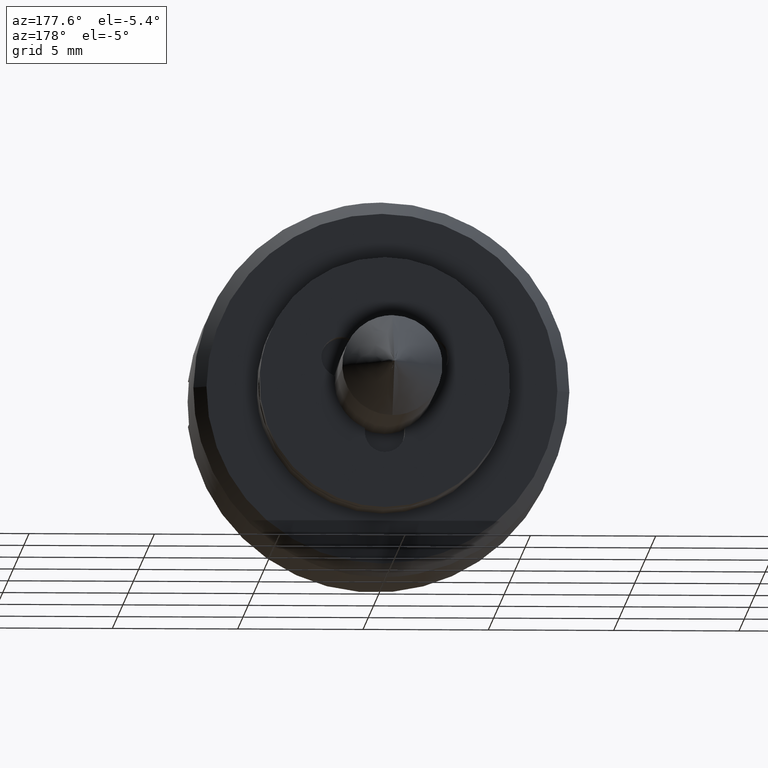
[diagram: clean part render]
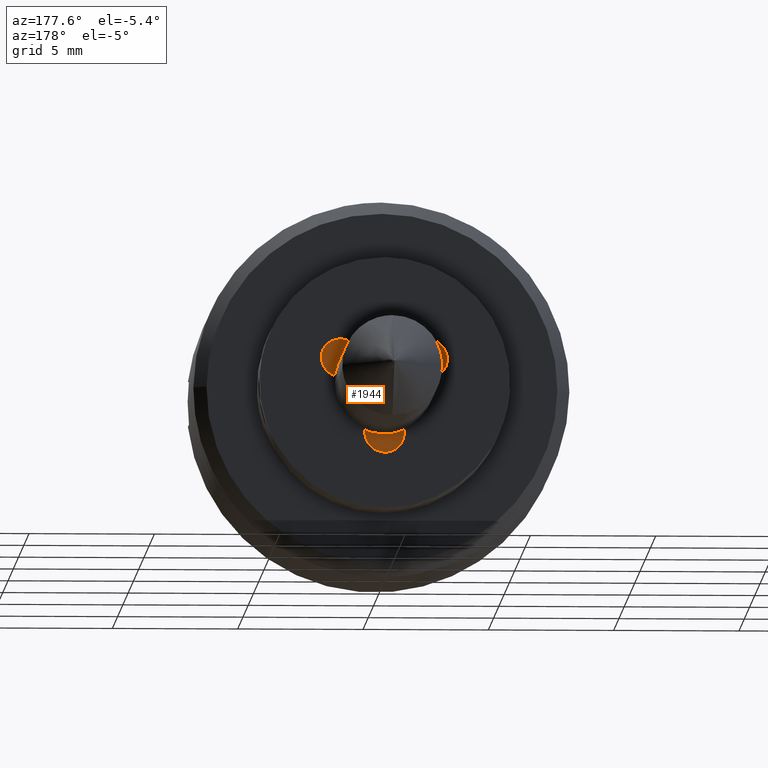
[diagram: same view with one face highlighted and labeled with its STEP entity id]
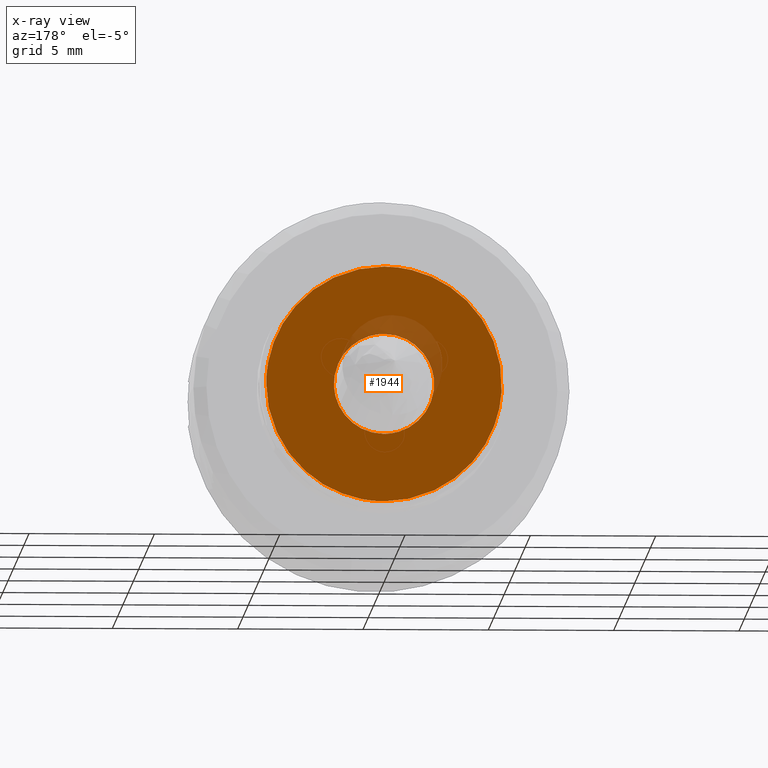
[diagram: x-ray of the same camera — body ghosted, the highlighted face saturated]
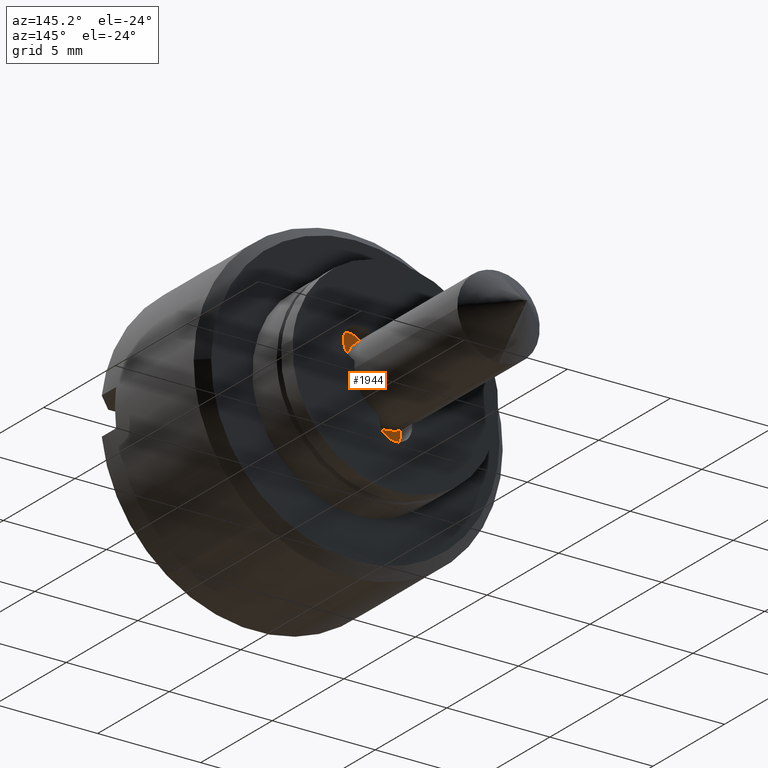
[diagram: same view with one face highlighted and labeled with its STEP entity id]
A machine part, auxiliary view. The second image highlights one B-rep face of the part: STEP entity #1944.
The next image is the same camera in x-ray: the body ghosted, the highlighted face saturated — about 6% of this face is hidden behind the body in this view.
A second angle (auxiliary view) of the same face is appended — the face is thin or edge-on in the first view.
In plain terms, the highlighted face is a freeform B-spline surface patch.
Its self-contained STEP definition (entity closure, byte-faithful):
#889=CARTESIAN_POINT('',(1.804112E-016,-1.996269596842710,-0.122097079086450));
#890=VERTEX_POINT('',#889);
#896=CARTESIAN_POINT('',(0.0,0.0,-2.0));
#897=VERTEX_POINT('',#896);
#898=CARTESIAN_POINT('',(0.0,0.0,-2.0));
#899=CARTESIAN_POINT('',(0.0,-1.881412133779795,-1.999999999999999));
#900=CARTESIAN_POINT('',(1.804112E-016,-1.996269596842710,-0.122097079086450));
#908=(BOUNDED_CURVE()B_SPLINE_CURVE(2,(#898,#899,#900),.UNSPECIFIED.,.F.,.U.)B_SPLINE_CURVE_WITH_KNOTS((3,3),(0.500000000000000,0.739332962239076),.UNSPECIFIED.)CURVE()GEOMETRIC_REPRESENTATION_ITEM()RATIONAL_B_SPLINE_CURVE((1.0,0.719603993286554,0.976072041667003))REPRESENTATION_ITEM(''));
#909=EDGE_CURVE('',#897,#890,#908,.T.);
#911=CARTESIAN_POINT('',(6.530685E-016,1.986019440260714,0.236065208990524));
#912=VERTEX_POINT('',#911);
#913=CARTESIAN_POINT('',(6.530685E-016,1.986019440260714,0.236065208990523));
#914=CARTESIAN_POINT('',(0.0,2.0,0.118446591908866));
#915=CARTESIAN_POINT('',(0.0,2.0,0.0));
#916=CARTESIAN_POINT('',(0.0,2.000000000000000,-2.000000000000000));
#917=CARTESIAN_POINT('',(0.0,0.0,-2.0));
#925=(BOUNDED_CURVE()B_SPLINE_CURVE(2,(#913,#914,#915,#916,#917),.UNSPECIFIED.,.F.,.U.)B_SPLINE_CURVE_WITH_KNOTS((3,2,3),(0.229562750957712,0.250000000000000,0.500000000000000),.UNSPECIFIED.)CURVE()GEOMETRIC_REPRESENTATION_ITEM()RATIONAL_B_SPLINE_CURVE((0.956027297986413,0.976056273377248,1.0,0.707106781186548,1.0))REPRESENTATION_ITEM(''));
#926=EDGE_CURVE('',#912,#897,#925,.T.);
#974=CARTESIAN_POINT('',(0.0,0.0,2.0));
#975=VERTEX_POINT('',#974);
#976=CARTESIAN_POINT('',(0.0,0.0,2.0));
#977=CARTESIAN_POINT('',(0.0,1.776351988553769,2.000000000000000));
#978=CARTESIAN_POINT('',(6.530685E-016,1.986019440260714,0.236065208990523));
#986=(BOUNDED_CURVE()B_SPLINE_CURVE(2,(#976,#977,#978),.UNSPECIFIED.,.F.,.U.)B_SPLINE_CURVE_WITH_KNOTS((3,3),(0.0,0.229562750957712),.UNSPECIFIED.)CURVE()GEOMETRIC_REPRESENTATION_ITEM()RATIONAL_B_SPLINE_CURVE((1.0,0.731050507809300,0.956027297986413))REPRESENTATION_ITEM(''));
#987=EDGE_CURVE('',#975,#912,#986,.T.);
#989=CARTESIAN_POINT('',(1.804112E-016,-1.996269596842710,-0.122097079086450));
#990=CARTESIAN_POINT('',(0.0,-2.000000000000000,-0.061105526613961));
#991=CARTESIAN_POINT('',(0.0,-2.0,0.0));
#992=CARTESIAN_POINT('',(0.0,-2.000000000000000,2.000000000000000));
#993=CARTESIAN_POINT('',(0.0,0.0,2.0));
#1001=(BOUNDED_CURVE()B_SPLINE_CURVE(2,(#989,#990,#991,#992,#993),.UNSPECIFIED.,.F.,.U.)B_SPLINE_CURVE_WITH_KNOTS((3,2,3),(0.739332962239075,0.750000000000000,1.0),.UNSPECIFIED.)CURVE()GEOMETRIC_REPRESENTATION_ITEM()RATIONAL_B_SPLINE_CURVE((0.976072041667001,0.987502787899992,1.0,0.707106781186548,1.0))REPRESENTATION_ITEM(''));
#1002=EDGE_CURVE('',#890,#975,#1001,.T.);
#1270=CARTESIAN_POINT('',(-2.097128E-012,4.689782556541044,-0.309741137698986));
#1271=VERTEX_POINT('',#1270);
#1277=CARTESIAN_POINT('',(0.0,0.0,-4.700000000000000));
#1278=VERTEX_POINT('',#1277);
#1279=CARTESIAN_POINT('',(0.0,0.0,-4.700000000000000));
#1280=CARTESIAN_POINT('',(0.0,4.399823745340890,-4.700000000000002));
#1281=CARTESIAN_POINT('',(-2.097128E-012,4.689782556541044,-0.309741137698986));
#1289=(BOUNDED_CURVE()B_SPLINE_CURVE(2,(#1279,#1280,#1281),.UNSPECIFIED.,.F.,.U.)B_SPLINE_CURVE_WITH_KNOTS((3,3),(0.500000000000000,0.738494527072068),.UNSPECIFIED.)CURVE()GEOMETRIC_REPRESENTATION_ITEM()RATIONAL_B_SPLINE_CURVE((1.0,0.720586281185879,0.974281704179932))REPRESENTATION_ITEM(''));
#1290=EDGE_CURVE('',#1278,#1271,#1289,.T.);
#1292=CARTESIAN_POINT('',(-1.559568E-012,-4.699821038403064,0.041014716853850));
#1293=VERTEX_POINT('',#1292);
#1294=CARTESIAN_POINT('',(-1.559568E-012,-4.699821038403064,0.041014716853850));
#1295=CARTESIAN_POINT('',(0.0,-4.700000000000000,0.020507748868777));
#1296=CARTESIAN_POINT('',(0.0,-4.700000000000000,0.0));
#1297=CARTESIAN_POINT('',(0.0,-4.700000000000000,-4.700000000000000));
#1298=CARTESIAN_POINT('',(0.0,0.0,-4.700000000000000));
#1306=(BOUNDED_CURVE()B_SPLINE_CURVE(2,(#1294,#1295,#1296,#1297,#1298),.UNSPECIFIED.,.F.,.U.)B_SPLINE_CURVE_WITH_KNOTS((3,2,3),(0.248460105664153,0.250000000000000,0.500000000000000),.UNSPECIFIED.)CURVE()GEOMETRIC_REPRESENTATION_ITEM()RATIONAL_B_SPLINE_CURVE((0.996414028098415,0.998195901565364,1.0,0.707106781186547,1.0))REPRESENTATION_ITEM(''));
#1307=EDGE_CURVE('',#1293,#1278,#1306,.T.);
#1417=CARTESIAN_POINT('',(0.0,0.0,4.700000000000000));
#1418=VERTEX_POINT('',#1417);
#1419=CARTESIAN_POINT('',(0.0,0.0,4.700000000000000));
#1420=CARTESIAN_POINT('',(0.0,-4.659162689773635,4.700000000000001));
#1421=CARTESIAN_POINT('',(-1.559568E-012,-4.699821038403064,0.041014716853850));
#1429=(BOUNDED_CURVE()B_SPLINE_CURVE(2,(#1419,#1420,#1421),.UNSPECIFIED.,.F.,.U.)B_SPLINE_CURVE_WITH_KNOTS((3,3),(0.0,0.248460105664152),.UNSPECIFIED.)CURVE()GEOMETRIC_REPRESENTATION_ITEM()RATIONAL_B_SPLINE_CURVE((1.0,0.708910879621183,0.996414028098414))REPRESENTATION_ITEM(''));
#1430=EDGE_CURVE('',#1418,#1293,#1429,.T.);
#1432=CARTESIAN_POINT('',(-2.097128E-012,4.689782556541045,-0.309741137698986));
#1433=CARTESIAN_POINT('',(0.0,4.699999999999999,-0.155039090468103));
#1434=CARTESIAN_POINT('',(0.0,4.700000000000000,0.0));
#1435=CARTESIAN_POINT('',(0.0,4.700000000000000,4.700000000000000));
#1436=CARTESIAN_POINT('',(0.0,0.0,4.700000000000000));
#1444=(BOUNDED_CURVE()B_SPLINE_CURVE(2,(#1432,#1433,#1434,#1435,#1436),.UNSPECIFIED.,.F.,.U.)B_SPLINE_CURVE_WITH_KNOTS((3,2,3),(0.738494527072069,0.750000000000000,1.0),.UNSPECIFIED.)CURVE()GEOMETRIC_REPRESENTATION_ITEM()RATIONAL_B_SPLINE_CURVE((0.974281704179934,0.986520500000669,1.0,0.707106781186547,1.0))REPRESENTATION_ITEM(''));
#1445=EDGE_CURVE('',#1271,#1418,#1444,.T.);
#1927=CARTESIAN_POINT('',(0.0,-5.169326782705564,5.169529771716624));
#1928=CARTESIAN_POINT('',(0.0,5.169200802924413,5.169529771716624));
#1929=CARTESIAN_POINT('',(0.0,-5.169326782705564,-5.169529519588978));
#1930=CARTESIAN_POINT('',(0.0,5.169200802924413,-5.169529519588978));
#1931=B_SPLINE_SURFACE_WITH_KNOTS('',1,1,((#1927,#1929),(#1928,#1930)),.UNSPECIFIED.,.F.,.F.,.U.,(2,2),(2,2),(0.0,10.338527585629979),(0.0,10.339059291305601),.UNSPECIFIED.);
#1932=ORIENTED_EDGE('',*,*,#1430,.T.);
#1933=ORIENTED_EDGE('',*,*,#1307,.T.);
#1934=ORIENTED_EDGE('',*,*,#1290,.T.);
#1935=ORIENTED_EDGE('',*,*,#1445,.T.);
#1936=EDGE_LOOP('',(#1932,#1933,#1934,#1935));
#1937=FACE_OUTER_BOUND('',#1936,.T.);
#1938=ORIENTED_EDGE('',*,*,#909,.T.);
#1939=ORIENTED_EDGE('',*,*,#1002,.T.);
#1940=ORIENTED_EDGE('',*,*,#987,.T.);
#1941=ORIENTED_EDGE('',*,*,#926,.T.);
#1942=EDGE_LOOP('',(#1938,#1939,#1940,#1941));
#1943=FACE_BOUND('',#1942,.T.);
#1944=ADVANCED_FACE('',(#1937,#1943),#1931,.F.);